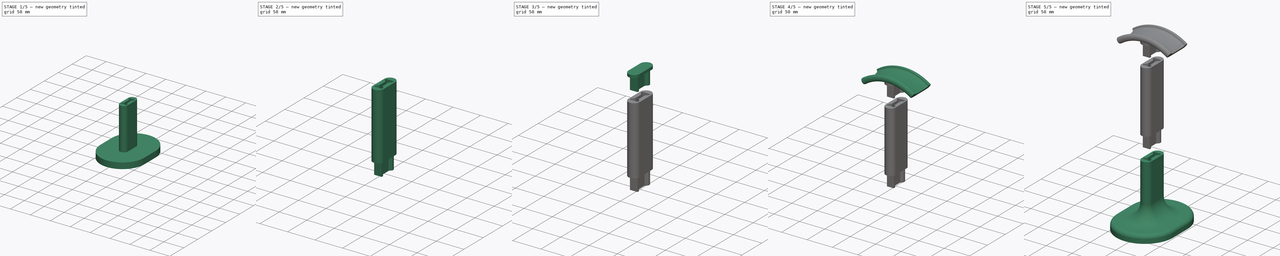
[diagram: build sequence overview — one tinted view per stage of 5, left to right]
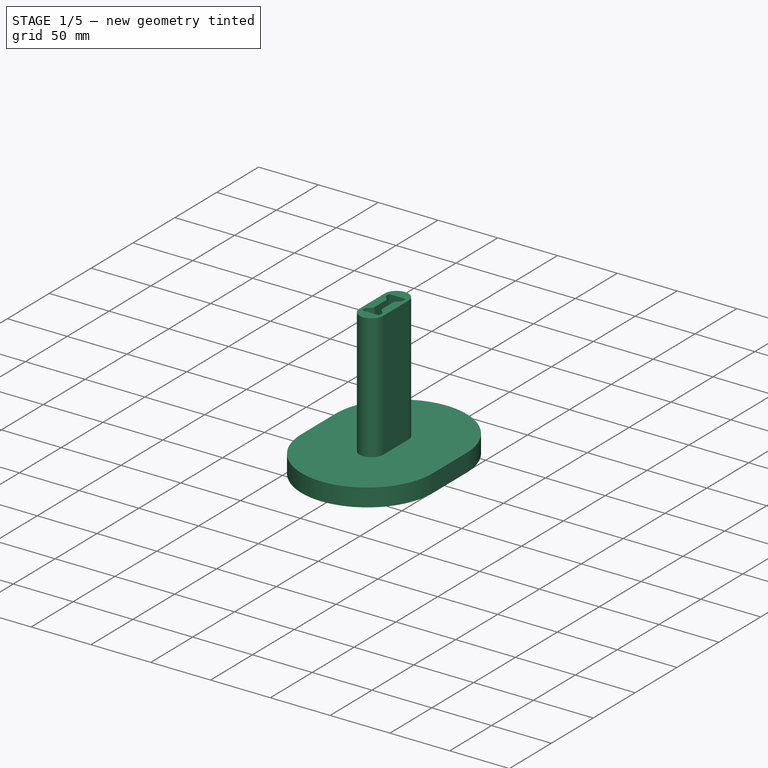
[diagram: stage 1 of 5 — iso view after this stage's code; geometry added in this stage tinted green]
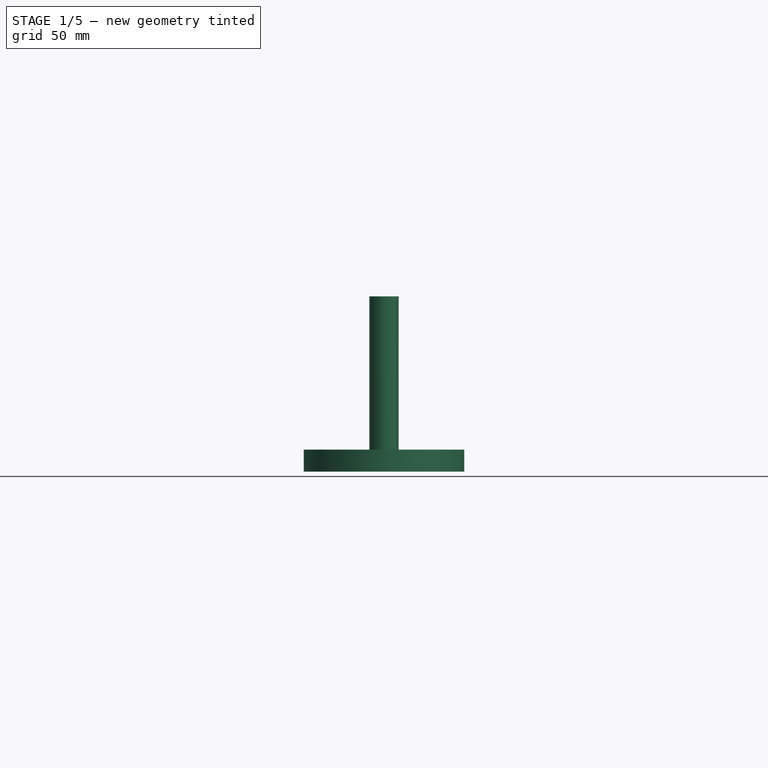
[diagram: stage 1 of 5 — front view after this stage's code; geometry added in this stage tinted green]
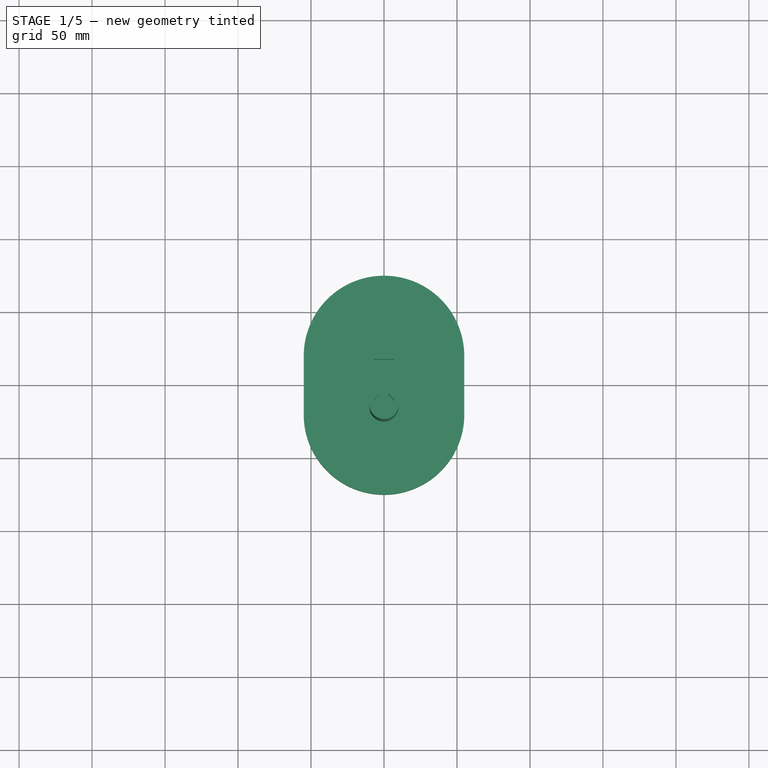
[diagram: stage 1 of 5 — top view after this stage's code; geometry added in this stage tinted green]
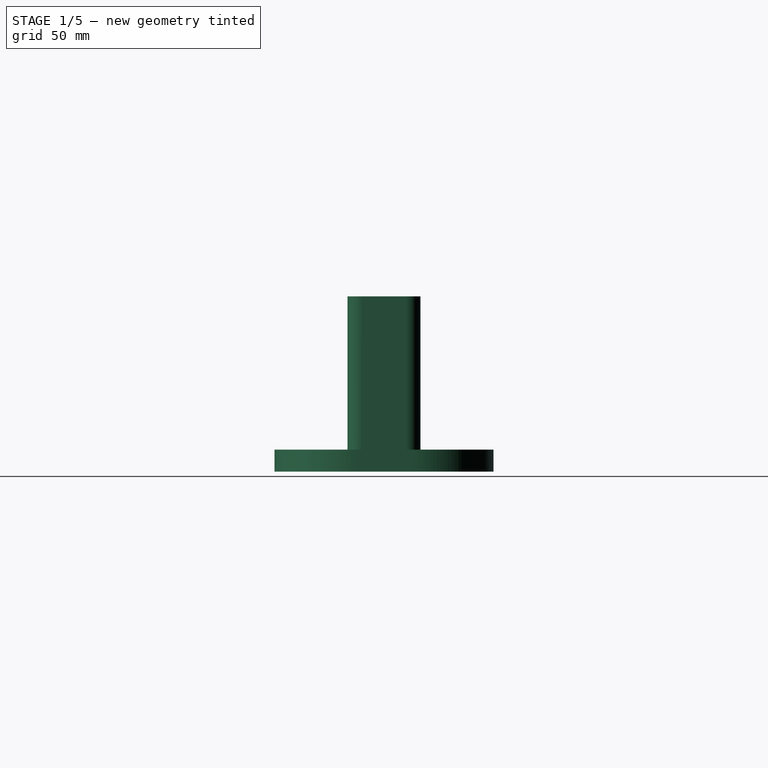
[diagram: stage 1 of 5 — right view after this stage's code; geometry added in this stage tinted green]
FCSTD DOCUMENT  (FreeCAD 0.17R13541 (Git))
Label: hph_holder
License: All rights reserved
LicenseURL: http://en.wikipedia.org/wiki/All_rights_reserved
objects: Sketcher::SketchObject×11, PartDesign::Pad×6, PartDesign::Fillet×6, PartDesign::Body×3, PartDesign::Pocket×2, PartDesign::AdditivePipe×1, App::Part×1
note: 38 computed .brp shape members not serialized (recipe doc carries the construction recipe); baked Part::Feature solids carry a one-line shape summary decoded from their .brp

FEATURE [Sketcher::SketchObject] Sketch  label="SupportSketch"
  MapMode = 5
  Support = -> [XY_Plane001]
  sketch-geometry (4):
    g0: ArcOfCircle CenterX=0 CenterY=20 CenterZ=0 NormalX=0 NormalY=0 NormalZ=1 AngleXU=0 Radius=55 StartAngle=0 EndAngle=3.14159
    g1: ArcOfCircle CenterX=0 CenterY=-20 CenterZ=0 NormalX=0 NormalY=0 NormalZ=1 AngleXU=0 Radius=55 StartAngle=3.14159 EndAngle=6.28319
    g2: LineSegment StartX=-55 StartY=20 StartZ=0 EndX=-55 EndY=-20 EndZ=0
    g3: LineSegment StartX=55 StartY=20 StartZ=0 EndX=55 EndY=-20 EndZ=0
  constraints (10):
    c: Tangent(g0,g3) = 1.5708
    c: Tangent(g0,g2) = -1.5708
    c: Tangent(g2,g1) = -1.5708
    c: Tangent(g3,g1) = 1.5708
    c: Vertical(g2)
    c: Equal(g0,g1)
    c: Symmetric(g0,g0,g-2)
    c: Symmetric(g1,g0,g-1)
    c: DistanceX(g0,g0) = 110
    c: DistanceY(g1,g0) = 40
FEATURE [PartDesign::Pad] Pad  label="SupportPad"
  Length = 15
  Length2 = 100
  Profile = -> Sketch
  Type = 0
FEATURE [Sketcher::SketchObject] Sketch001  label="ShaftSketch"
  MapMode = 5
  Support = -> [XY_Plane001]
  sketch-geometry (4):
    g0: ArcOfCircle CenterX=0 CenterY=15 CenterZ=0 NormalX=0 NormalY=0 NormalZ=1 AngleXU=0 Radius=10 StartAngle=0 EndAngle=3.14159
    g1: ArcOfCircle CenterX=0 CenterY=-15 CenterZ=0 NormalX=0 NormalY=0 NormalZ=1 AngleXU=0 Radius=10 StartAngle=3.14159 EndAngle=6.28319
    g2: LineSegment StartX=-10 StartY=15 StartZ=0 EndX=-10 EndY=-15 EndZ=0
    g3: LineSegment StartX=10 StartY=15 StartZ=0 EndX=10 EndY=-15 EndZ=0
  constraints (10):
    c: Tangent(g0,g3) = 1.5708
    c: Tangent(g0,g2) = -1.5708
    c: Tangent(g2,g1) = -1.5708
    c: Tangent(g3,g1) = 1.5708
    c: Vertical(g2)
    c: Equal(g0,g1)
    c: Symmetric(g0,g0,g-2)
    c: Symmetric(g1,g0,g-1)
    c: DistanceY(g1,g0) = 30
    c: DistanceX(g0,g0) = 20
FEATURE [PartDesign::Pad] Pad001  label="ShaftPad"
  BaseFeature = -> Pad
  Length = 120
  Length2 = 100
  Profile = -> Sketch001
  Type = 0
FEATURE [Sketcher::SketchObject] Sketch002  label="CutoffSketch"
  MapMode = 5
  Placement = pos=(0,0,120) rot=(0,0,1;0rad)
  Support = -> [Pad001]
  sketch-geometry (12):
    g0: LineSegment StartX=-7 StartY=16 StartZ=0 EndX=-7 EndY=12 EndZ=0
    g1: LineSegment StartX=-7 StartY=12 StartZ=0 EndX=-3 EndY=7.5 EndZ=0
    g2: LineSegment StartX=-3 StartY=7.5 StartZ=0 EndX=-3 EndY=-7.5 EndZ=0
    g3: LineSegment StartX=-3 StartY=-7.5 StartZ=0 EndX=-7 EndY=-12 EndZ=0
    g4: LineSegment StartX=-7 StartY=-12 StartZ=0 EndX=-7 EndY=-16 EndZ=0
    g5: LineSegment StartX=-7 StartY=-16 StartZ=0 EndX=7 EndY=-16 EndZ=0
    g6: LineSegment StartX=7 StartY=-16 StartZ=0 EndX=7 EndY=-12 EndZ=0
    g7: LineSegment StartX=7 StartY=-12 StartZ=0 EndX=3 EndY=-7.5 EndZ=0
    g8: LineSegment StartX=3 StartY=-7.5 StartZ=0 EndX=3 EndY=7.5 EndZ=0
    g9: LineSegment StartX=3 StartY=7.5 StartZ=0 EndX=7 EndY=12 EndZ=0
    g10: LineSegment StartX=7 StartY=12 StartZ=0 EndX=7 EndY=16 EndZ=0
    g11: LineSegment StartX=7 StartY=16 StartZ=0 EndX=-7 EndY=16 EndZ=0
  constraints (32):
    c: Vertical(g0)
    c: Coincident(g0,g1)
    c: Coincident(g1,g2)
    c: Vertical(g2)
    c: Coincident(g2,g3)
    c: Coincident(g3,g4)
    c: Vertical(g4)
    c: Coincident(g4,g5)
    c: Horizontal(g5)
    c: Coincident(g5,g6)
    c: Coincident(g6,g7)
    c: Coincident(g7,g8)
    c: Coincident(g8,g9)
    c: Coincident(g9,g10)
    c: Vertical(g10)
    c: Coincident(g10,g11)
    c: Coincident(g11,g0)
    c: Horizontal(g11)
    c: Symmetric(g0,g4,g-1)
    c: Symmetric(g3,g6,g-2)
    c: Symmetric(g0,g9,g-2)
    c: Symmetric(g1,g8,g-2)
    c: Vertical(g8)
    c: Symmetric(g1,g2,g-1)
    c: Symmetric(g0,g3,g-1)
    c: Vertical(g6)
    c: Equal(g2,g8)
    c: DistanceY(g8,g8) = 15
    c: DistanceY(g6,g9) = 24
    c: DistanceX(g0,g10) = 14
    c: DistanceX(g2,g7) = 6
    c: DistanceY(g5,g10) = 32
FEATURE [PartDesign::Pocket] Pocket  label="CutoffPocket"
  BaseFeature = -> Pad001
  Length = 25
  Length2 = 100
  Profile = -> Sketch002
  Type = 0
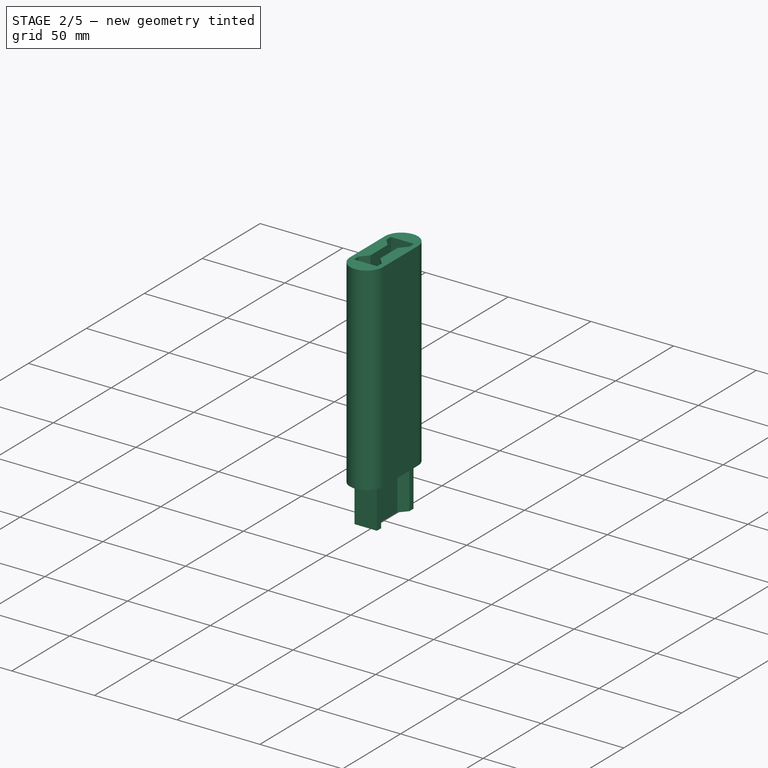
[diagram: stage 2 of 5 — iso view after this stage's code; geometry added in this stage tinted green]
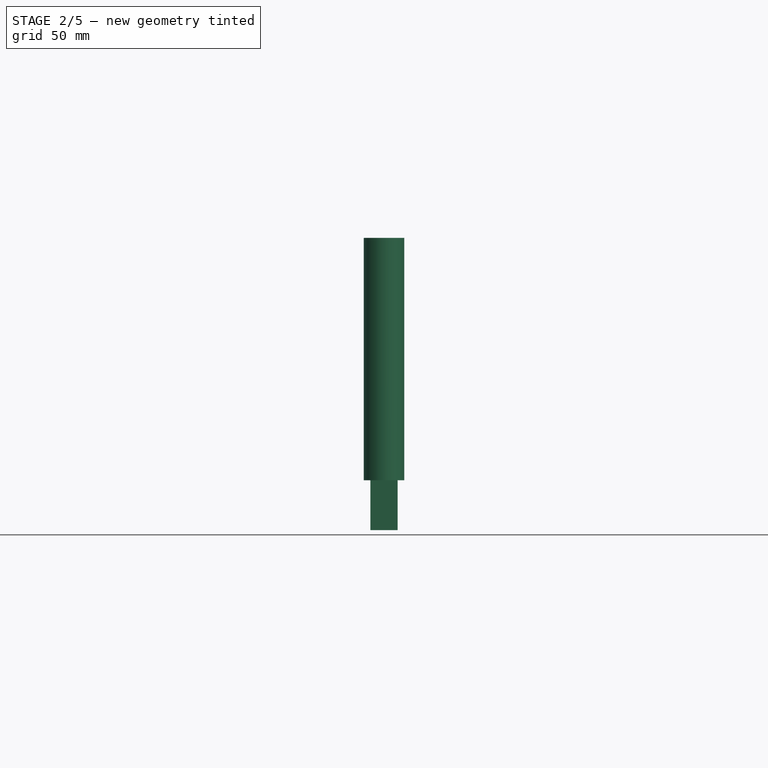
[diagram: stage 2 of 5 — front view after this stage's code; geometry added in this stage tinted green]
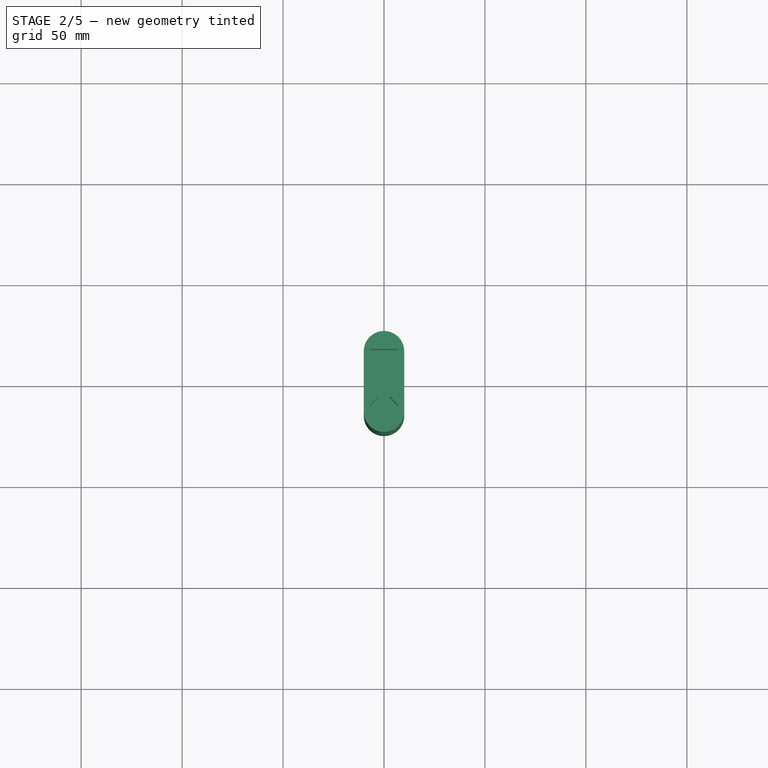
[diagram: stage 2 of 5 — top view after this stage's code; geometry added in this stage tinted green]
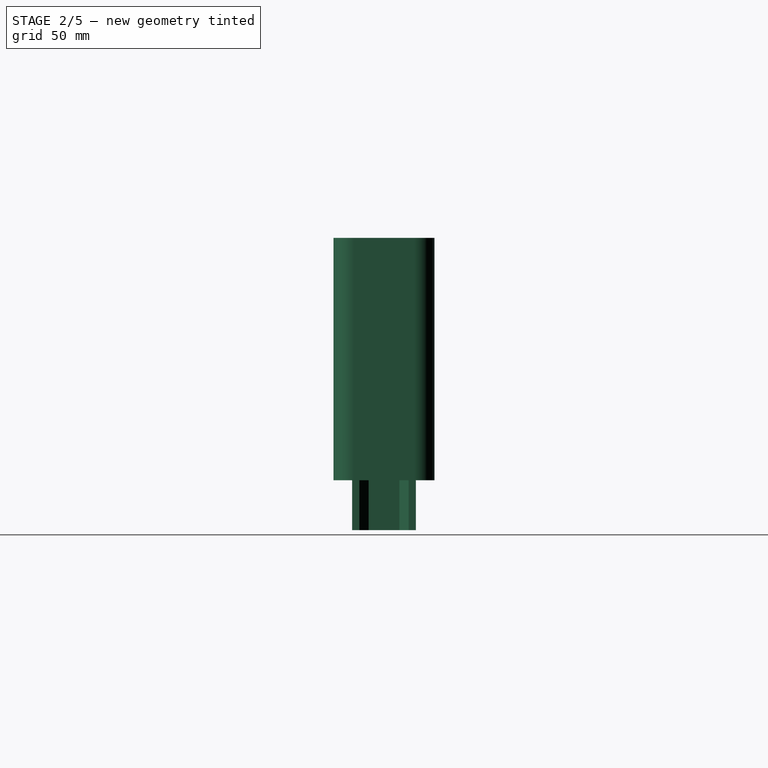
[diagram: stage 2 of 5 — right view after this stage's code; geometry added in this stage tinted green]
FEATURE [Sketcher::SketchObject] Sketch003  label="InsertionSketch"
  AttachmentOffset = pos=(0,0,120) rot=(0,0,1;0rad)
  ExternalGeometry = -> [Pocket]
  MapMode = 5
  Placement = pos=(0,0,120) rot=(0,0,1;0rad)
  Support = -> [XY_Plane001]
  sketch-geometry (12):
    g0: LineSegment StartX=-6.77639 StartY=15.8 StartZ=0 EndX=-6.77639 EndY=12.2 EndZ=0
    g1: LineSegment StartX=-6.77639 StartY=12.2 StartZ=0 EndX=-2.73 EndY=7.63077 EndZ=0
    g2: LineSegment StartX=-2.73 StartY=7.63077 StartZ=0 EndX=-2.73 EndY=-7.63077 EndZ=0
    g3: LineSegment StartX=-2.73 StartY=-7.63077 StartZ=0 EndX=-6.77639 EndY=-12.2 EndZ=0
    g4: LineSegment StartX=-6.77639 StartY=-12.2 StartZ=0 EndX=-6.77639 EndY=-15.8 EndZ=0
    g5: LineSegment StartX=-6.77639 StartY=-15.8 StartZ=0 EndX=6.77639 EndY=-15.8 EndZ=0
    g6: LineSegment StartX=6.77639 StartY=-15.8 StartZ=0 EndX=6.77639 EndY=-12.2 EndZ=0
    g7: LineSegment StartX=6.77639 StartY=-12.2 StartZ=0 EndX=2.73 EndY=-7.63077 EndZ=0
    g8: LineSegment StartX=2.73 StartY=-7.63077 StartZ=0 EndX=2.73 EndY=7.63077 EndZ=0
    g9: LineSegment StartX=2.73 StartY=7.63077 StartZ=0 EndX=6.77639 EndY=12.2 EndZ=0
    g10: LineSegment StartX=6.77639 StartY=12.2 StartZ=0 EndX=6.77639 EndY=15.8 EndZ=0
    g11: LineSegment StartX=6.77639 StartY=15.8 StartZ=0 EndX=-6.77639 EndY=15.8 EndZ=0
  constraints (32):
    c: Vertical(g0)
    c: Coincident(g0,g1)
    c: Coincident(g1,g2)
    c: Vertical(g2)
    c: Coincident(g2,g3)
    c: Coincident(g3,g4)
    c: Coincident(g4,g5)
    c: Horizontal(g5)
    c: Coincident(g5,g6)
    c: Vertical(g6)
    c: Coincident(g6,g7)
    c: Coincident(g7,g8)
    c: Vertical(g8)
    c: Coincident(g8,g9)
    c: Coincident(g9,g10)
    c: Vertical(g10)
    c: Coincident(g10,g11)
    c: Coincident(g11,g0)
    c: Horizontal(g11)
    c: Symmetric(g8,g1,g-2)
    c: Symmetric(g0,g9,g-2)
    c: Symmetric(g2,g7,g-2)
    c: Symmetric(g6,g3,g-2)
    c: Symmetric(g4,g5,g-2)
    c: Symmetric(g6,g9,g-1)
    c: Symmetric(g7,g8,g-1)
    c: Symmetric(g5,g10,g-1)
    c: Distance(g7,g-14) = 0.3
    c: Distance(g-14,g6) = 0.3
    c: Distance(g5,g-13) = 0.3
    c: DistanceY(g5,g6) = 3.6
    c: DistanceX(g1,g-1) = 2.73
FEATURE [Sketcher::SketchObject] Sketch004  label="InsertionSketch001"
  AttachmentOffset = pos=(0,0,140) rot=(0,0,1;0rad)
  ExternalGeometry = -> [Pocket]
  MapMode = 5
  Placement = pos=(0,0,140) rot=(0,0,1;0rad)
  Support = -> [XY_Plane002]
  sketch-geometry (12):
    g0: LineSegment StartX=-6.77639 StartY=15.8 StartZ=0 EndX=-6.77639 EndY=12.2 EndZ=0
    g1: LineSegment StartX=-6.77639 StartY=12.2 StartZ=0 EndX=-2.73 EndY=7.63077 EndZ=0
    g2: LineSegment StartX=-2.73 StartY=7.63077 StartZ=0 EndX=-2.73 EndY=-7.63077 EndZ=0
    g3: LineSegment StartX=-2.73 StartY=-7.63077 StartZ=0 EndX=-6.77639 EndY=-12.2 EndZ=0
    g4: LineSegment StartX=-6.77639 StartY=-12.2 StartZ=0 EndX=-6.77639 EndY=-15.8 EndZ=0
    g5: LineSegment StartX=-6.77639 StartY=-15.8 StartZ=0 EndX=6.77639 EndY=-15.8 EndZ=0
    g6: LineSegment StartX=6.77639 StartY=-15.8 StartZ=0 EndX=6.77639 EndY=-12.2 EndZ=0
    g7: LineSegment StartX=6.77639 StartY=-12.2 StartZ=0 EndX=2.73 EndY=-7.63077 EndZ=0
    g8: LineSegment StartX=2.73 StartY=-7.63077 StartZ=0 EndX=2.73 EndY=7.63077 EndZ=0
    g9: LineSegment StartX=2.73 StartY=7.63077 StartZ=0 EndX=6.77639 EndY=12.2 EndZ=0
    g10: LineSegment StartX=6.77639 StartY=12.2 StartZ=0 EndX=6.77639 EndY=15.8 EndZ=0
    g11: LineSegment StartX=6.77639 StartY=15.8 StartZ=0 EndX=-6.77639 EndY=15.8 EndZ=0
  constraints (32):
    c: Vertical(g0)
    c: Coincident(g0,g1)
    c: Coincident(g1,g2)
    c: Vertical(g2)
    c: Coincident(g2,g3)
    c: Coincident(g3,g4)
    c: Coincident(g4,g5)
    c: Horizontal(g5)
    c: Coincident(g5,g6)
    c: Vertical(g6)
    c: Coincident(g6,g7)
    c: Coincident(g7,g8)
    c: Vertical(g8)
    c: Coincident(g8,g9)
    c: Coincident(g9,g10)
    c: Vertical(g10)
    c: Coincident(g10,g11)
    c: Coincident(g11,g0)
    c: Horizontal(g11)
    c: Symmetric(g8,g1,g-2)
    c: Symmetric(g0,g9,g-2)
    c: Symmetric(g2,g7,g-2)
    c: Symmetric(g6,g3,g-2)
    c: Symmetric(g4,g5,g-2)
    c: Symmetric(g6,g9,g-1)
    c: Symmetric(g7,g8,g-1)
    c: Symmetric(g5,g10,g-1)
    c: Distance(g7,g-14) = 0.3
    c: Distance(g-14,g6) = 0.3
    c: Distance(g5,g-13) = 0.3
    c: DistanceY(g5,g6) = 3.6
    c: DistanceX(g1,g-1) = 2.73
FEATURE [PartDesign::Pad] Pad002  label="InsertionPad"
  Length = 24.7
  Length2 = 100
  Profile = -> Sketch004
  Type = 0
FEATURE [Sketcher::SketchObject] Sketch005  label="ShaftSketch1"
  MapMode = 5
  Placement = pos=(0,0,164.7) rot=(0,0,1;0rad)
  Support = -> [Pad002]
  sketch-geometry (4):
    g0: ArcOfCircle CenterX=0 CenterY=15 CenterZ=0 NormalX=0 NormalY=0 NormalZ=1 AngleXU=0 Radius=10 StartAngle=0 EndAngle=3.14159
    g1: ArcOfCircle CenterX=0 CenterY=-15 CenterZ=0 NormalX=0 NormalY=0 NormalZ=1 AngleXU=0 Radius=10 StartAngle=3.14159 EndAngle=6.28319
    g2: LineSegment StartX=-10 StartY=15 StartZ=0 EndX=-10 EndY=-15 EndZ=0
    g3: LineSegment StartX=10 StartY=15 StartZ=0 EndX=10 EndY=-15 EndZ=0
  constraints (10):
    c: Tangent(g0,g3) = 1.5708
    c: Tangent(g0,g2) = -1.5708
    c: Tangent(g2,g1) = -1.5708
    c: Tangent(g3,g1) = 1.5708
    c: Vertical(g2)
    c: Equal(g0,g1)
    c: Symmetric(g0,g0,g-2)
    c: Symmetric(g1,g0,g-1)
    c: DistanceY(g1,g0) = 30
    c: DistanceX(g0,g0) = 20
FEATURE [PartDesign::Pad] Pad003  label="ShaftPad1"
  BaseFeature = -> Pad002
  Length = 120
  Length2 = 100
  Profile = -> Sketch005
  Type = 0
FEATURE [Sketcher::SketchObject] Sketch006  label="CutoffSketch001"
  MapMode = 5
  Placement = pos=(0,0,284.7) rot=(0,0,1;0rad)
  Support = -> [Pad003]
  sketch-geometry (12):
    g0: LineSegment StartX=-7 StartY=16 StartZ=0 EndX=-7 EndY=12 EndZ=0
    g1: LineSegment StartX=-7 StartY=12 StartZ=0 EndX=-3 EndY=7.5 EndZ=0
    g2: LineSegment StartX=-3 StartY=7.5 StartZ=0 EndX=-3 EndY=-7.5 EndZ=0
    g3: LineSegment StartX=-3 StartY=-7.5 StartZ=0 EndX=-7 EndY=-12 EndZ=0
    g4: LineSegment StartX=-7 StartY=-12 StartZ=0 EndX=-7 EndY=-16 EndZ=0
    g5: LineSegment StartX=-7 StartY=-16 StartZ=0 EndX=7 EndY=-16 EndZ=0
    g6: LineSegment StartX=7 StartY=-16 StartZ=0 EndX=7 EndY=-12 EndZ=0
    g7: LineSegment StartX=7 StartY=-12 StartZ=0 EndX=3 EndY=-7.5 EndZ=0
    g8: LineSegment StartX=3 StartY=-7.5 StartZ=0 EndX=3 EndY=7.5 EndZ=0
    g9: LineSegment StartX=3 StartY=7.5 StartZ=0 EndX=7 EndY=12 EndZ=0
    g10: LineSegment StartX=7 StartY=12 StartZ=0 EndX=7 EndY=16 EndZ=0
    g11: LineSegment StartX=7 StartY=16 StartZ=0 EndX=-7 EndY=16 EndZ=0
  constraints (32):
    c: Vertical(g0)
    c: Coincident(g0,g1)
    c: Coincident(g1,g2)
    c: Vertical(g2)
    c: Coincident(g2,g3)
    c: Coincident(g3,g4)
    c: Vertical(g4)
    c: Coincident(g4,g5)
    c: Horizontal(g5)
    c: Coincident(g5,g6)
    c: Coincident(g6,g7)
    c: Coincident(g7,g8)
    c: Coincident(g8,g9)
    c: Coincident(g9,g10)
    c: Vertical(g10)
    c: Coincident(g10,g11)
    c: Coincident(g11,g0)
    c: Horizontal(g11)
    c: Symmetric(g0,g4,g-1)
    c: Symmetric(g3,g6,g-2)
    c: Symmetric(g0,g9,g-2)
    c: Symmetric(g1,g8,g-2)
    c: Vertical(g8)
    c: Symmetric(g1,g2,g-1)
    c: Symmetric(g0,g3,g-1)
    c: Vertical(g6)
    c: Equal(g2,g8)
    c: DistanceY(g8,g8) = 15
    c: DistanceY(g6,g9) = 24
    c: DistanceX(g0,g10) = 14
    c: DistanceX(g2,g7) = 6
    c: DistanceY(g5,g10) = 32
FEATURE [PartDesign::Pocket] Pocket001  label="CutoffPocket1"
  BaseFeature = -> Pad003
  Length = 25
  Length2 = 100
  Profile = -> Sketch006
  Type = 0
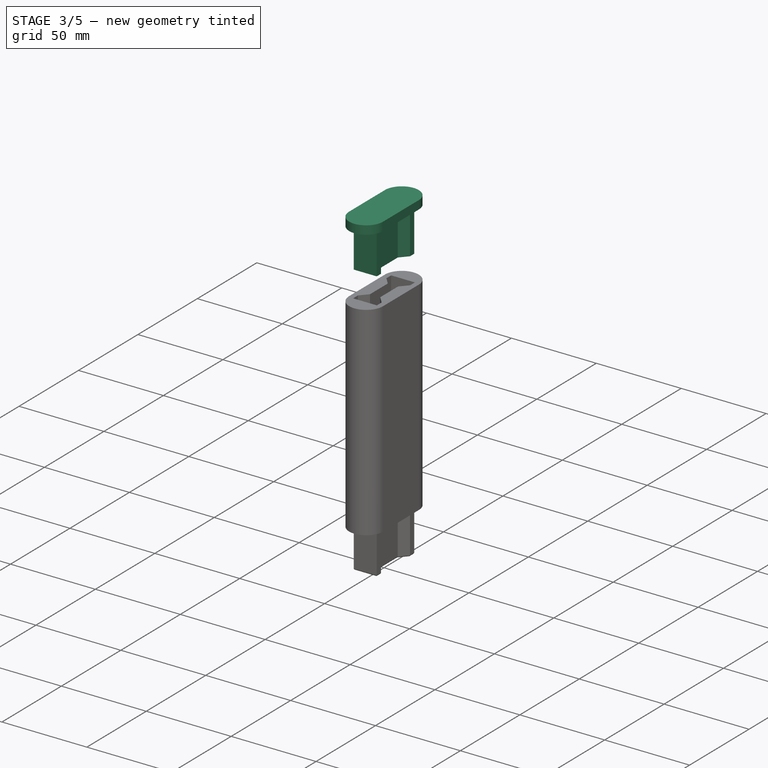
[diagram: stage 3 of 5 — iso view after this stage's code; geometry added in this stage tinted green]
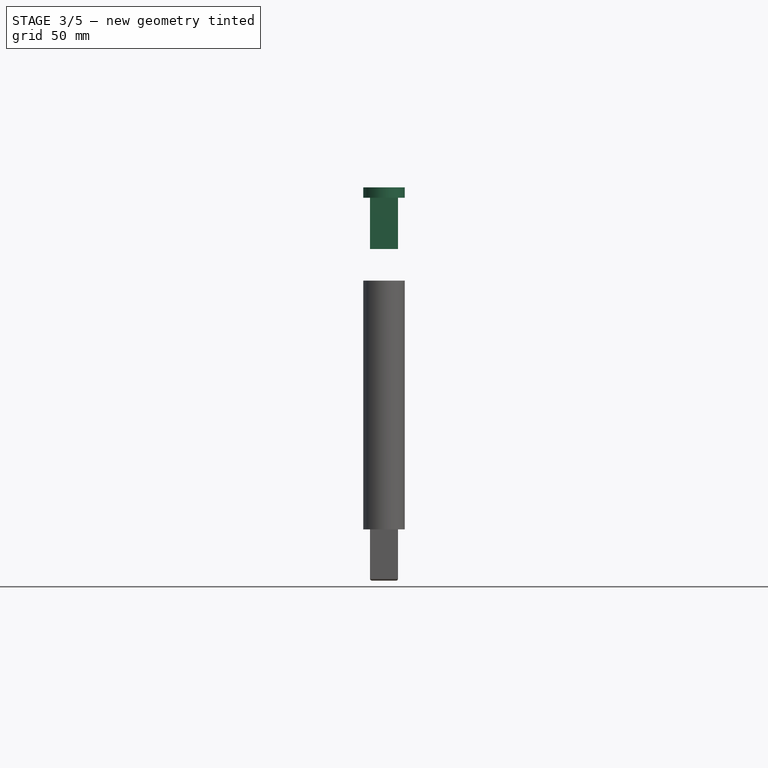
[diagram: stage 3 of 5 — front view after this stage's code; geometry added in this stage tinted green]
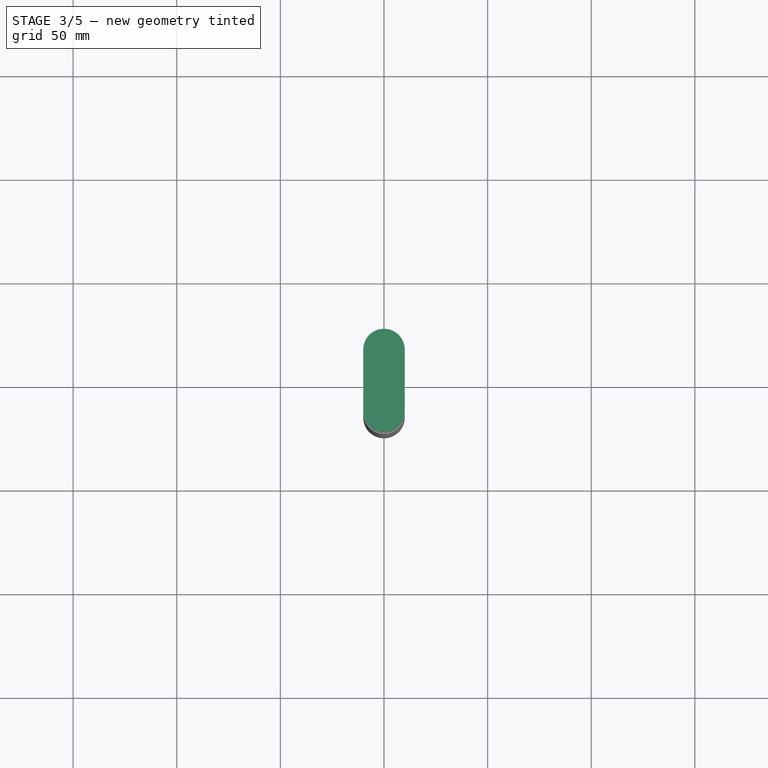
[diagram: stage 3 of 5 — top view after this stage's code; geometry added in this stage tinted green]
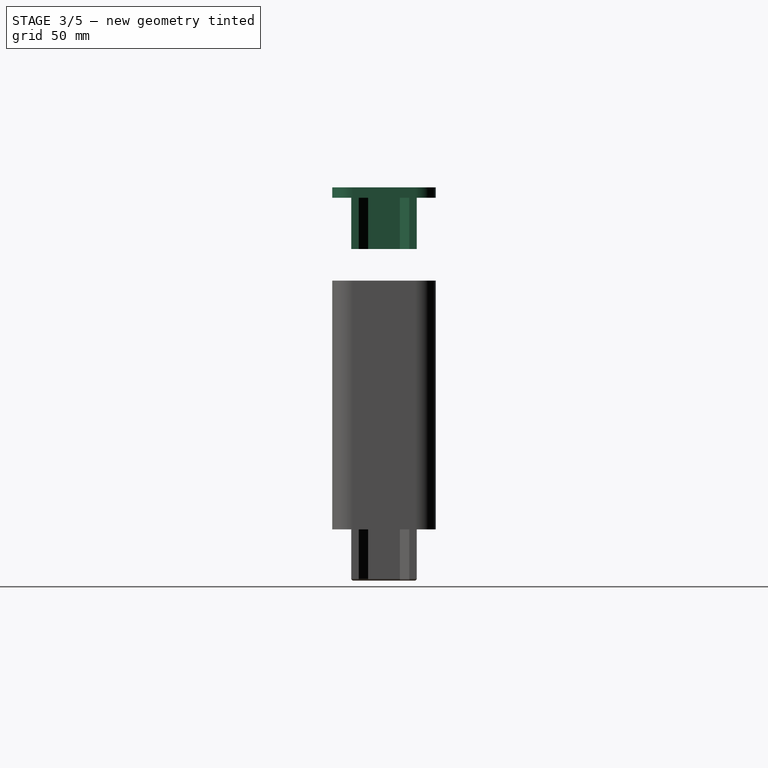
[diagram: stage 3 of 5 — right view after this stage's code; geometry added in this stage tinted green]
FEATURE [Sketcher::SketchObject] Sketch007  label="InsertionSketch2"
  AttachmentOffset = pos=(0,0,300) rot=(0,0,1;0rad)
  ExternalGeometry = -> [Pocket]
  MapMode = 5
  Placement = pos=(0,0,300) rot=(0,0,1;0rad)
  Support = -> [XY_Plane003]
  sketch-geometry (12):
    g0: LineSegment StartX=-6.77639 StartY=15.8 StartZ=0 EndX=-6.77639 EndY=12.2 EndZ=0
    g1: LineSegment StartX=-6.77639 StartY=12.2 StartZ=0 EndX=-2.73 EndY=7.63077 EndZ=0
    g2: LineSegment StartX=-2.73 StartY=7.63077 StartZ=0 EndX=-2.73 EndY=-7.63077 EndZ=0
    g3: LineSegment StartX=-2.73 StartY=-7.63077 StartZ=0 EndX=-6.77639 EndY=-12.2 EndZ=0
    g4: LineSegment StartX=-6.77639 StartY=-12.2 StartZ=0 EndX=-6.77639 EndY=-15.8 EndZ=0
    g5: LineSegment StartX=-6.77639 StartY=-15.8 StartZ=0 EndX=6.77639 EndY=-15.8 EndZ=0
    g6: LineSegment StartX=6.77639 StartY=-15.8 StartZ=0 EndX=6.77639 EndY=-12.2 EndZ=0
    g7: LineSegment StartX=6.77639 StartY=-12.2 StartZ=0 EndX=2.73 EndY=-7.63077 EndZ=0
    g8: LineSegment StartX=2.73 StartY=-7.63077 StartZ=0 EndX=2.73 EndY=7.63077 EndZ=0
    g9: LineSegment StartX=2.73 StartY=7.63077 StartZ=0 EndX=6.77639 EndY=12.2 EndZ=0
    g10: LineSegment StartX=6.77639 StartY=12.2 StartZ=0 EndX=6.77639 EndY=15.8 EndZ=0
    g11: LineSegment StartX=6.77639 StartY=15.8 StartZ=0 EndX=-6.77639 EndY=15.8 EndZ=0
  constraints (32):
    c: Vertical(g0)
    c: Coincident(g0,g1)
    c: Coincident(g1,g2)
    c: Vertical(g2)
    c: Coincident(g2,g3)
    c: Coincident(g3,g4)
    c: Coincident(g4,g5)
    c: Horizontal(g5)
    c: Coincident(g5,g6)
    c: Vertical(g6)
    c: Coincident(g6,g7)
    c: Coincident(g7,g8)
    c: Vertical(g8)
    c: Coincident(g8,g9)
    c: Coincident(g9,g10)
    c: Vertical(g10)
    c: Coincident(g10,g11)
    c: Coincident(g11,g0)
    c: Horizontal(g11)
    c: Symmetric(g8,g1,g-2)
    c: Symmetric(g0,g9,g-2)
    c: Symmetric(g2,g7,g-2)
    c: Symmetric(g6,g3,g-2)
    c: Symmetric(g4,g5,g-2)
    c: Symmetric(g6,g9,g-1)
    c: Symmetric(g7,g8,g-1)
    c: Symmetric(g5,g10,g-1)
    c: Distance(g7,g-14) = 0.3
    c: Distance(g-14,g6) = 0.3
    c: Distance(g5,g-13) = 0.3
    c: DistanceY(g5,g6) = 3.6
    c: DistanceX(g1,g-1) = 2.73
FEATURE [PartDesign::Pad] Pad004  label="InsertionPad4"
  Length = 24.7
  Length2 = 100
  Profile = -> Sketch007
  Type = 0
FEATURE [Sketcher::SketchObject] Sketch008  label="ShaftSketch002"
  MapMode = 5
  Placement = pos=(0,0,324.7) rot=(0,0,1;0rad)
  Support = -> [Pad004]
  sketch-geometry (4):
    g0: ArcOfCircle CenterX=0 CenterY=15 CenterZ=0 NormalX=0 NormalY=0 NormalZ=1 AngleXU=0 Radius=10 StartAngle=0 EndAngle=3.14159
    g1: ArcOfCircle CenterX=0 CenterY=-15 CenterZ=0 NormalX=0 NormalY=0 NormalZ=1 AngleXU=0 Radius=10 StartAngle=3.14159 EndAngle=6.28319
    g2: LineSegment StartX=-10 StartY=15 StartZ=0 EndX=-10 EndY=-15 EndZ=0
    g3: LineSegment StartX=10 StartY=15 StartZ=0 EndX=10 EndY=-15 EndZ=0
  constraints (10):
    c: Tangent(g0,g3) = 1.5708
    c: Tangent(g0,g2) = -1.5708
    c: Tangent(g2,g1) = -1.5708
    c: Tangent(g3,g1) = 1.5708
    c: Vertical(g2)
    c: Equal(g0,g1)
    c: Symmetric(g0,g0,g-2)
    c: Symmetric(g1,g0,g-1)
    c: DistanceY(g1,g0) = 30
    c: DistanceX(g0,g0) = 20
FEATURE [PartDesign::Pad] Pad005  label="ShaftPad005"
  BaseFeature = -> Pad004
  Length = 5
  Length2 = 100
  Profile = -> Sketch008
  Type = 0
FEATURE [PartDesign::Body] Body002  label="HolderBody"
  Group = -> [Sketch007,Pad004,Sketch008,Pad005,Sketch009,Sketch010,AdditivePipe,Fillet002,Fillet003,Fillet004]
  Origin = -> Origin003
  Tip = -> Fillet004
FEATURE [PartDesign::Fillet] Fillet005
  Base = -> Pocket001 [Face31]
  BaseFeature = -> Pocket001
  Radius = 1
FEATURE [PartDesign::Body] Body001  label="ShaftBody"
  Group = -> [Sketch004,Pad002,Sketch005,Pad003,Sketch006,Pocket001,Fillet005]
  Origin = -> Origin002
  Tip = -> Fillet005
FEATURE [App::Part] Part
  Group = -> [Body,Body001,Body002]
  License = CC BY 3.0
  LicenseURL = http://creativecommons.org/licenses/by/3.0/
  Origin = -> Origin
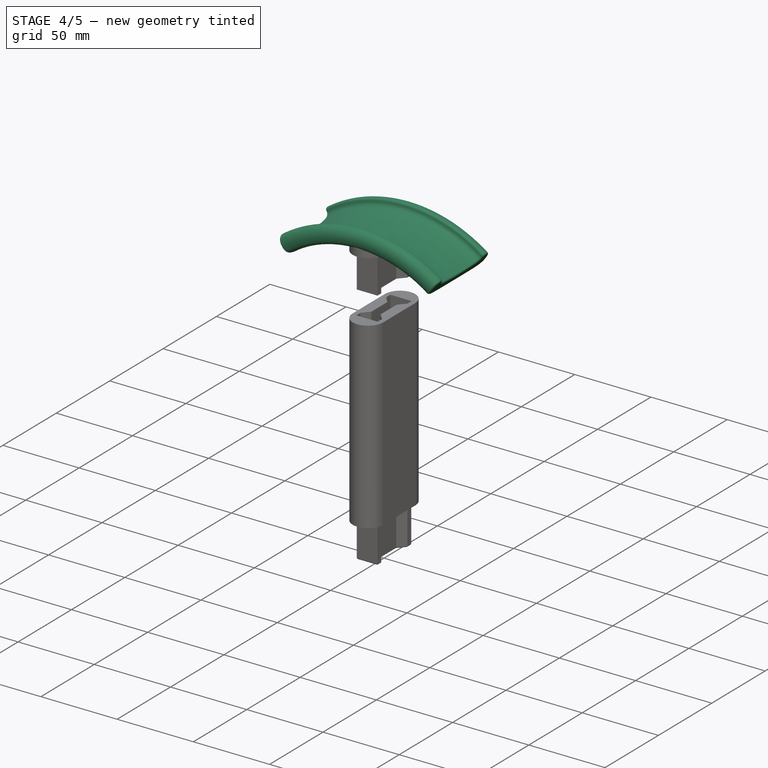
[diagram: stage 4 of 5 — iso view after this stage's code; geometry added in this stage tinted green]
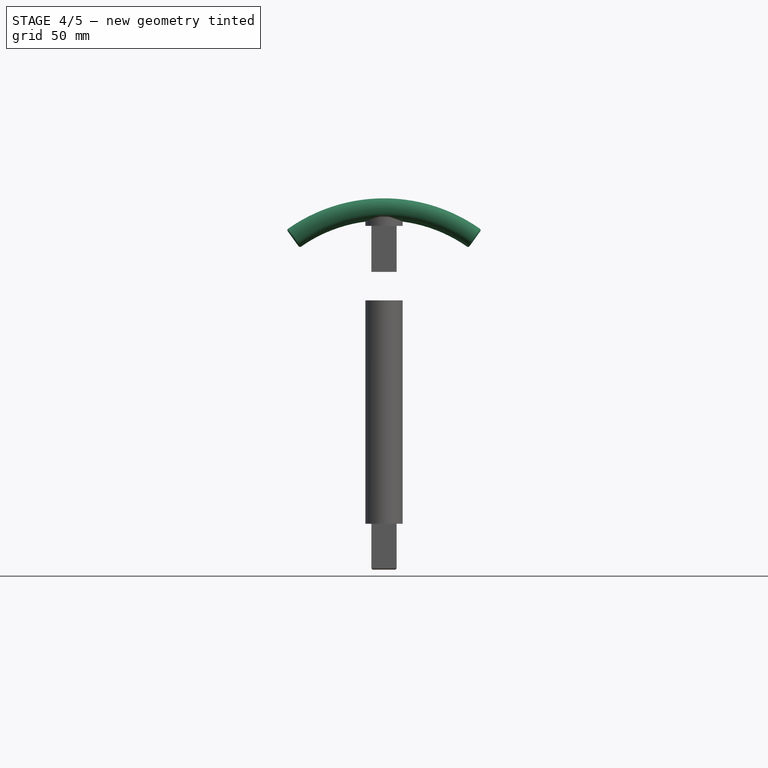
[diagram: stage 4 of 5 — front view after this stage's code; geometry added in this stage tinted green]
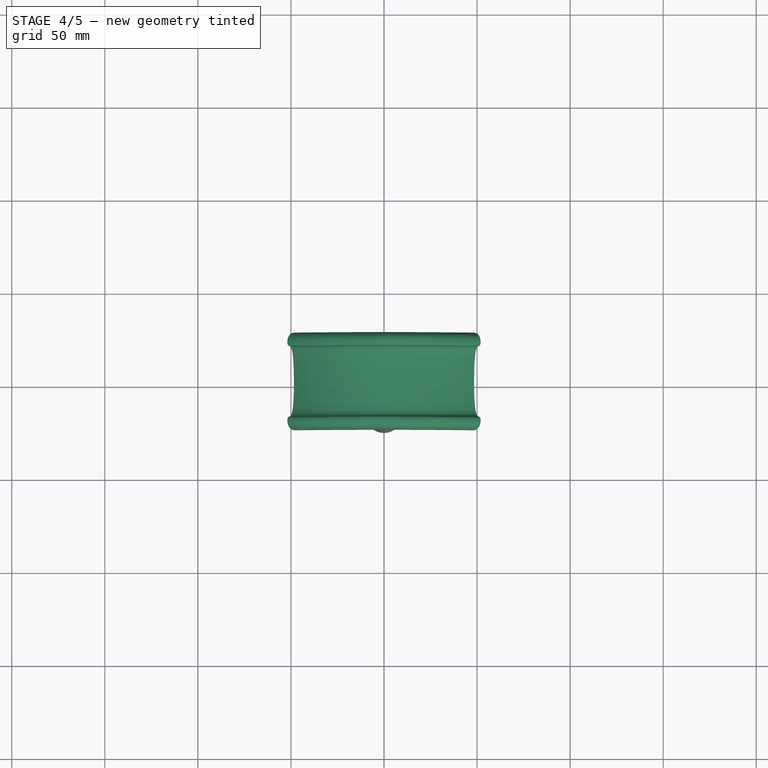
[diagram: stage 4 of 5 — top view after this stage's code; geometry added in this stage tinted green]
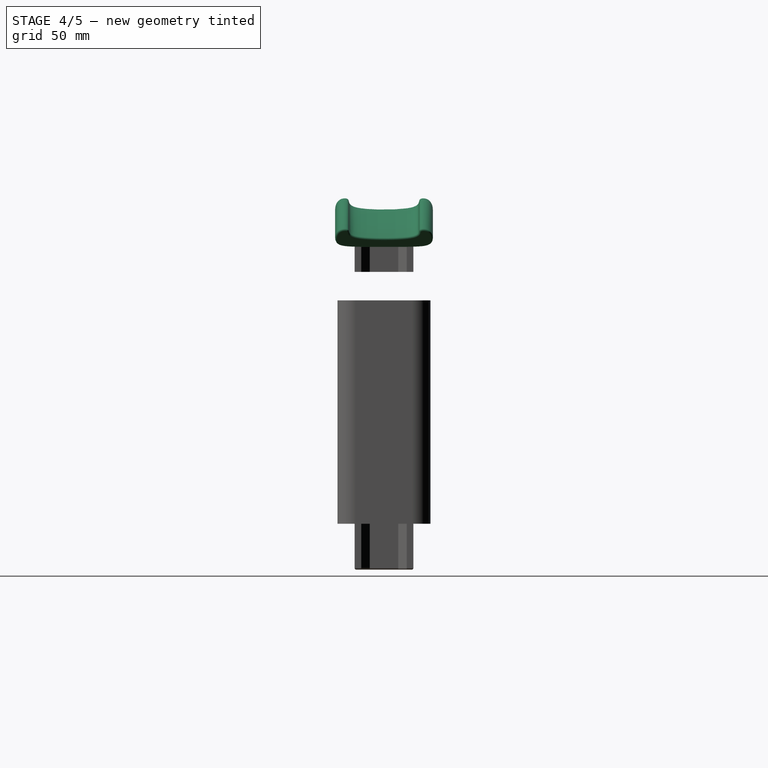
[diagram: stage 4 of 5 — right view after this stage's code; geometry added in this stage tinted green]
FEATURE [PartDesign::Body] Body  label="SupportBody"
  Group = -> [Sketch,Pad,Sketch001,Pad001,Sketch002,Pocket,Sketch003,Fillet,Fillet001]
  Origin = -> Origin001
  Tip = -> Fillet001
FEATURE [PartDesign::AdditivePipe] AdditivePipe
  AuxilleryCurvelinear = true
  AuxillerySpineTangent = false
  BaseFeature = -> Pad005
  Binormal = (0,0,0)
  Mode = 0
  Profile = -> Sketch009
  Spine = -> Sketch010 [Edge1]
  SpineTangent = false
  Transformation = 0
  Transition = 0
FEATURE [PartDesign::Fillet] Fillet002
  Base = -> AdditivePipe [Edge25]
  BaseFeature = -> AdditivePipe
  Radius = 1
FEATURE [PartDesign::Fillet] Fillet003
  Base = -> Fillet002 [Edge13]
  BaseFeature = -> Fillet002
  Radius = 1
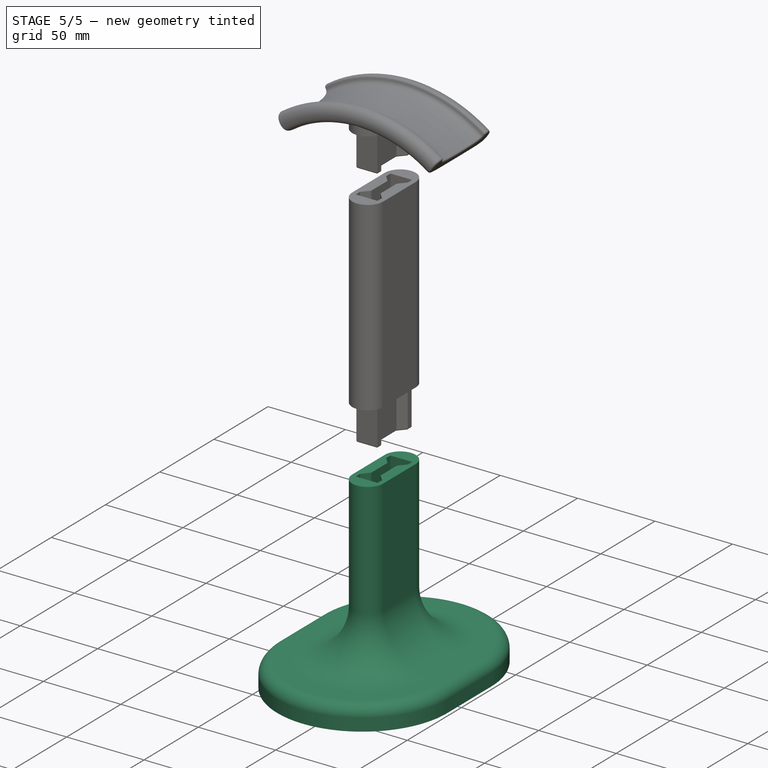
[diagram: stage 5 of 5 — iso view after this stage's code; geometry added in this stage tinted green]
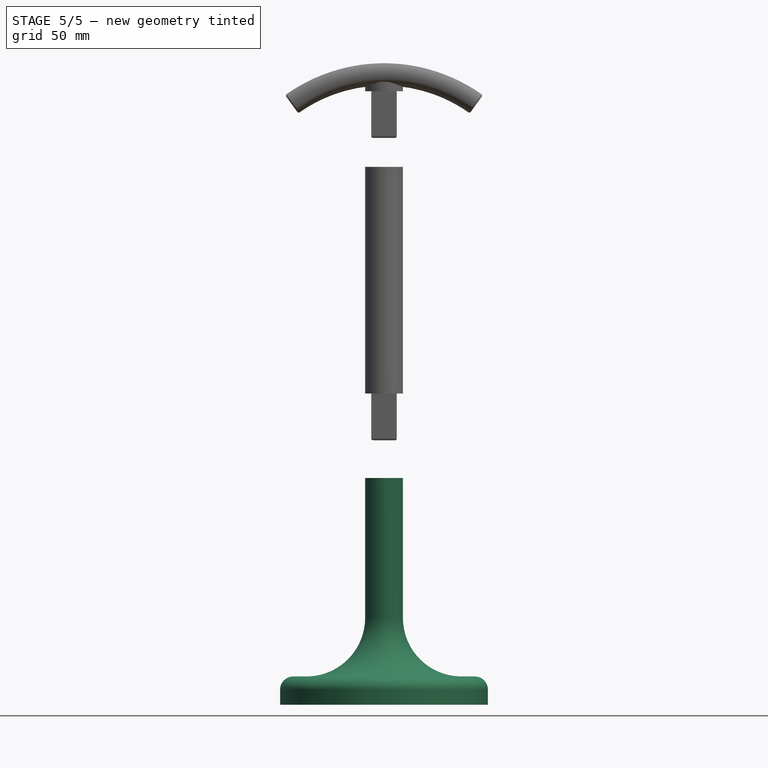
[diagram: stage 5 of 5 — front view after this stage's code; geometry added in this stage tinted green]
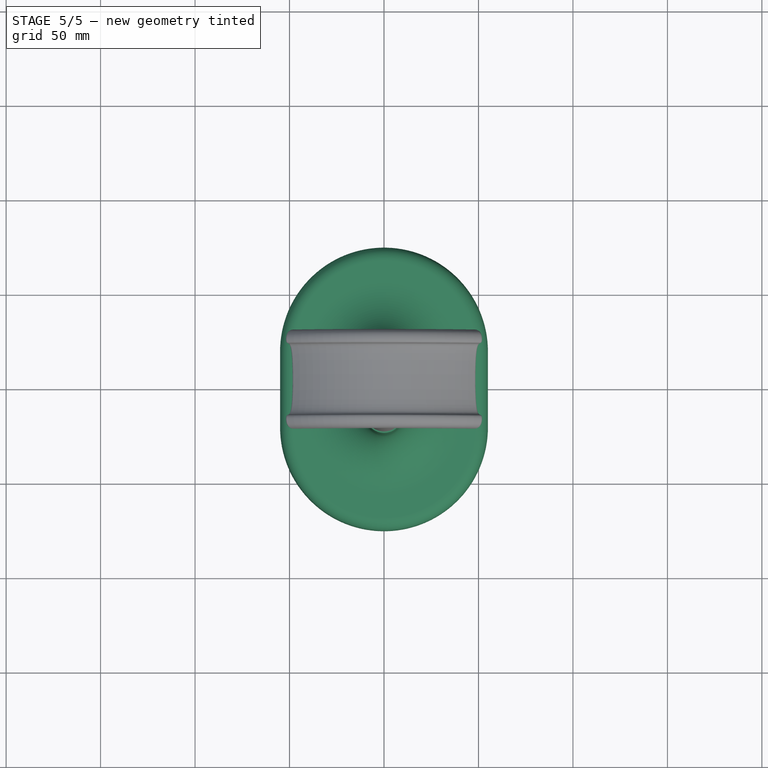
[diagram: stage 5 of 5 — top view after this stage's code; geometry added in this stage tinted green]
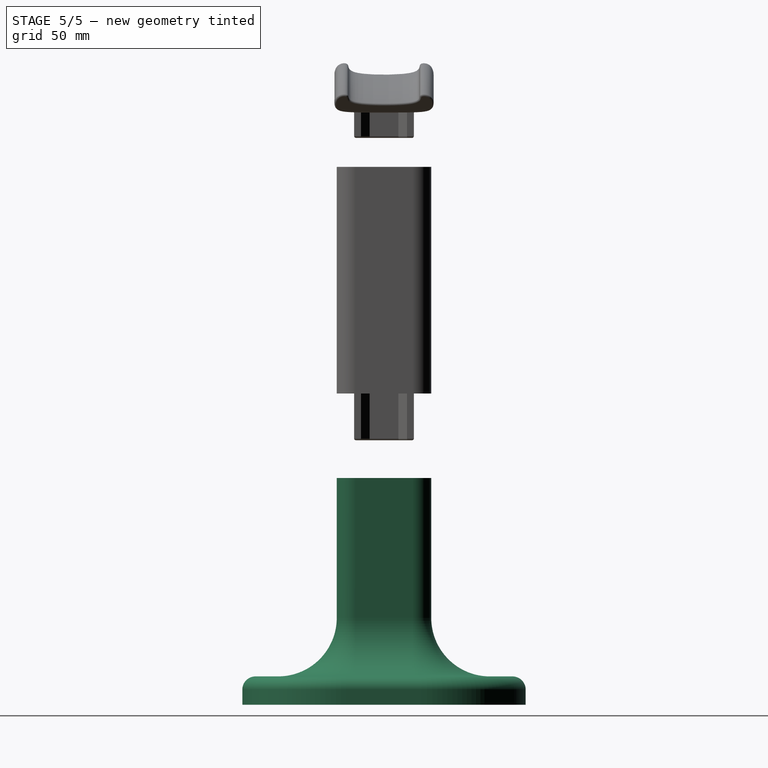
[diagram: stage 5 of 5 — right view after this stage's code; geometry added in this stage tinted green]
FEATURE [Sketcher::SketchObject] Sketch009  label="HolderProfileSketch"
  ExternalGeometry = -> [Pad005]
  MapMode = 5
  Placement = pos=(0,0,0) rot=(0.57735,0.57735,0.57735;2.0944rad)
  Support = -> [YZ_Plane003]
  sketch-geometry (24):
    g0-g10: Circle [constr] x11 (B-spline internal-alignment scaffolding for g11; pole/knot coordinates omitted)
    g11: BSplineCurve PolesCount=11 KnotsCount=12 Degree=3 IsPeriodic=1
    g12-g23: GeomPoint [constr] x12 (B-spline internal-alignment scaffolding for g11; pole/knot coordinates omitted)
  constraints (21):
    c: PointOnObject(g0,g-2)
    c: Radius(g0) = 3
    c: Equal(g0, g1-g10) x10
    c: InternalAlignment(g0-g10 -> g11) x11
    c: InternalAlignment(g12-g23 -> g11) x12
    c: Symmetric(g4,g7,g-2)
    c: Symmetric(g3,g8,g-2)
    c: Symmetric(g6,g5,g-2)
    c: Symmetric(g2,g9,g-2)
    c: Symmetric(g1,g10,g-2)
    c: DistanceY(g0,g-3) = 2.02
    c: DistanceY(g1,g0) = 0.07972
    c: DistanceY(g1,g2) = 1.54
    c: DistanceY(g1,g5) = 5.59
    c: DistanceY(g1,g4) = 12.41
    c: DistanceY(g1,g3) = 12.08
    c: DistanceX(g1,g0) = 18.92
    c: DistanceX(g2,g1) = 8.16
    c: DistanceX(g5,g1) = 2.26
    c: DistanceX(g1,g4) = 1.91
    c: DistanceX(g3,g1) = 7.09
FEATURE [Sketcher::SketchObject] Sketch010
  ExternalGeometry = -> [Pad005]
  MapMode = 5
  Placement = pos=(0,0,0) rot=(1,0,0;1.5708rad)
  Support = -> [XZ_Plane003]
  sketch-geometry (1):
    g0: ArcOfCircle CenterX=0 CenterY=250 CenterZ=0 NormalX=0 NormalY=0 NormalZ=1 AngleXU=0 Radius=77.0146 StartAngle=0.946773 EndAngle=2.19482
  constraints (4):
    c: Symmetric(g0,g0,g-2)
    c: DistanceX(g0,g0) = 90
    c: DistanceY(g0,g-3) = 50
    c: DistanceY(g-3,g0) = 12.5
FEATURE [PartDesign::Fillet] Fillet
  Base = -> Pocket [Edge7]
  BaseFeature = -> Pocket
  Radius = 7
FEATURE [PartDesign::Fillet] Fillet001
  Base = -> Fillet [Edge27]
  BaseFeature = -> Fillet
  Radius = 31
FEATURE [PartDesign::Fillet] Fillet004
  Base = -> Fillet003 [Face25]
  BaseFeature = -> Fillet003
  Radius = 1
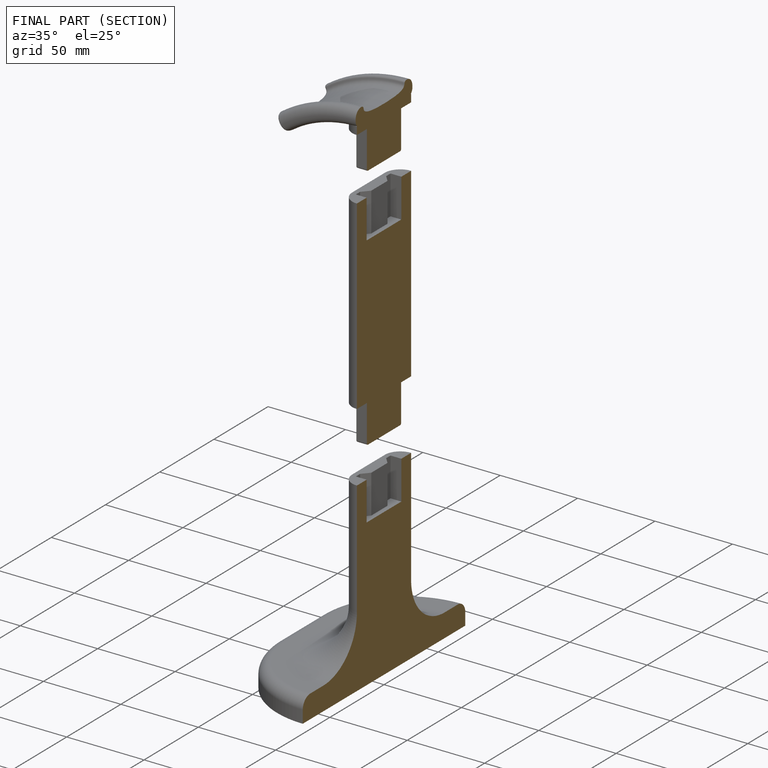
[diagram: finished part — half-section view (interior)]
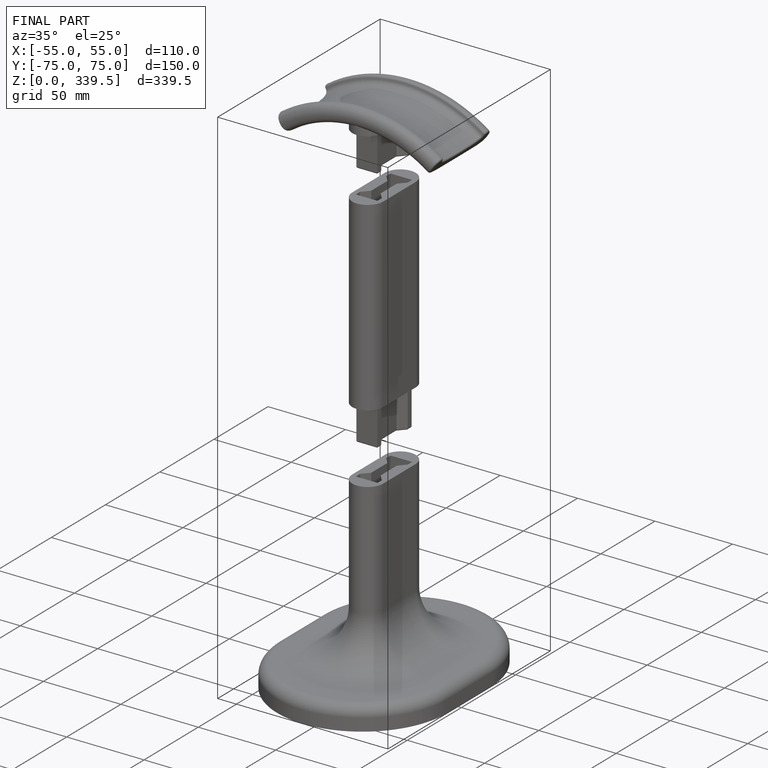
[diagram: finished part — iso view with bounding-box wireframe]
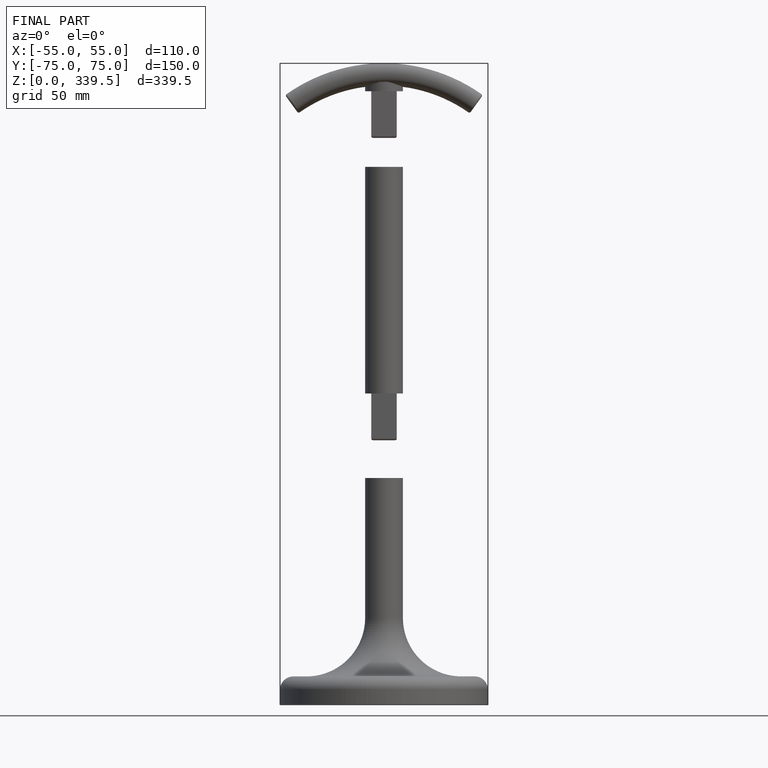
[diagram: finished part — front view with bounding-box wireframe]
